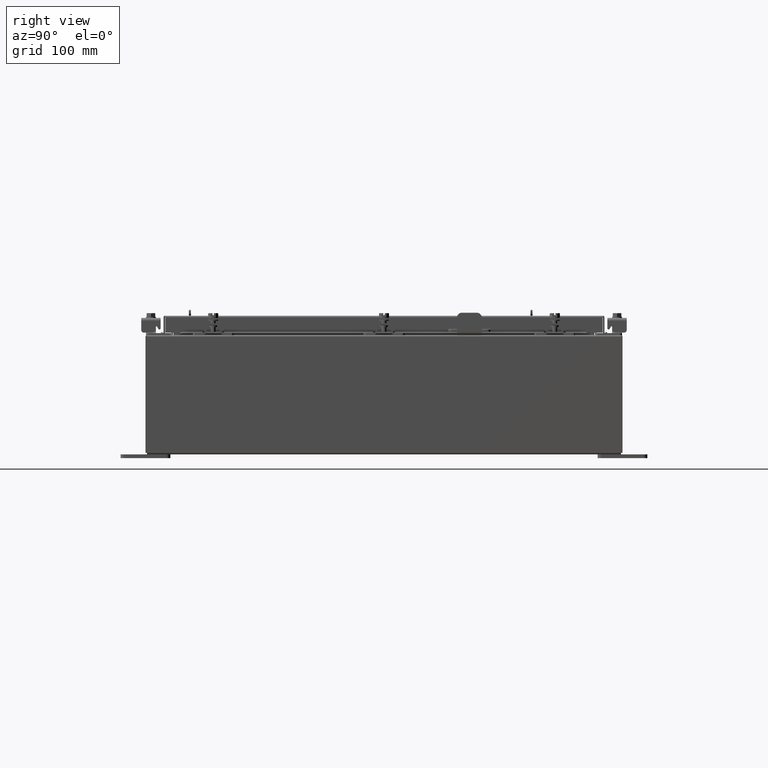
[diagram: clean part render]
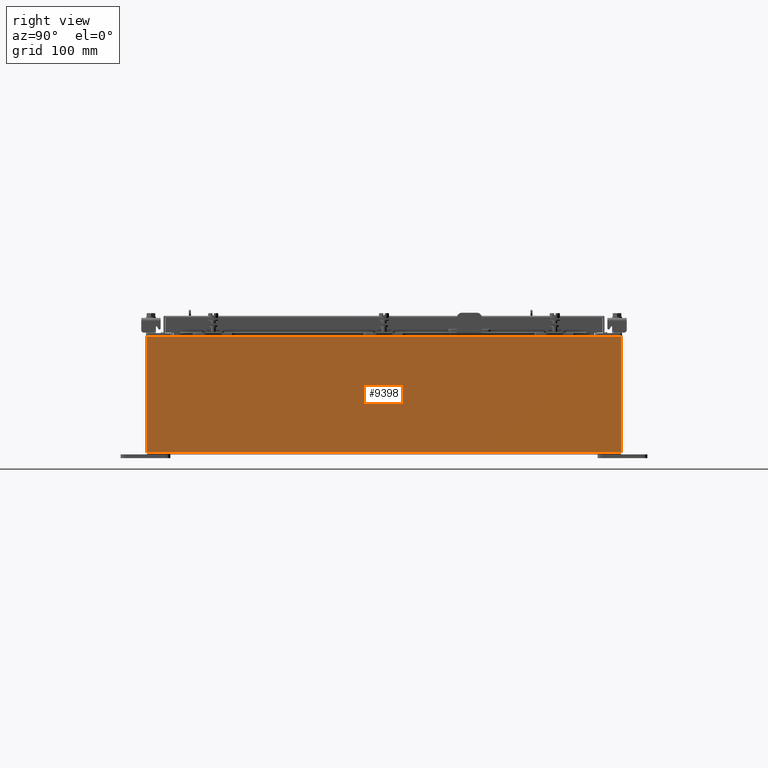
[diagram: same view with one face highlighted and labeled with its STEP entity id]
A machine part, right view. The second image highlights one B-rep face of the part: STEP entity #9398.
In plain terms, the highlighted planar face has unit normal (-1, 0, 0).
Its self-contained STEP definition (entity closure, byte-faithful):
#645 = VERTEX_POINT ( 'NONE', #7503 ) ;
#1080 = CARTESIAN_POINT ( 'NONE',  ( 11.99999999999999800, 11.92529999999999600, 0.01299999999999986400 ) ) ;
#1382 = ORIENTED_EDGE ( 'NONE', *, *, #15637, .T. ) ;
#1831 = VECTOR ( 'NONE', #1911, 39.37007874015748100 ) ;
#1911 = DIRECTION ( 'NONE',  ( -0.0000000000000000000, -1.000000000000000000, -0.0000000000000000000 ) ) ;
#2175 = CARTESIAN_POINT ( 'NONE',  ( 11.99999999999999800, -11.92530000000000400, -4.009536492811464200E-014 ) ) ;
#2377 = FACE_OUTER_BOUND ( 'NONE', #17457, .T. ) ;
#2378 = LINE ( 'NONE', #14114, #1831 ) ;
#3468 = VERTEX_POINT ( 'NONE', #8828 ) ;
#3616 = CARTESIAN_POINT ( 'NONE',  ( 11.99999999999999800, -11.92530000000000400, 0.01299999999999986400 ) ) ;
#4391 = EDGE_CURVE ( 'NONE', #12203, #13837, #14708, .T. ) ;
#6010 = VECTOR ( 'NONE', #14266, 39.37007874015748100 ) ;
#7503 = CARTESIAN_POINT ( 'NONE',  ( 12.00000000000001800, 11.92529999999999600, 5.837600000000001000 ) ) ;
#8828 = CARTESIAN_POINT ( 'NONE',  ( 12.00000000000001800, -11.92530000000000400, 5.837600000000001000 ) ) ;
#9198 = ORIENTED_EDGE ( 'NONE', *, *, #20733, .T. ) ;
#9398 = ADVANCED_FACE ( 'NONE', ( #2377 ), #18734, .F. ) ;
#10058 = DIRECTION ( 'NONE',  ( -1.000000000000000000, 0.0000000000000000000, 3.319545939341922000E-015 ) ) ;
#10060 = VECTOR ( 'NONE', #21081, 39.37007874015748100 ) ;
#12203 = VERTEX_POINT ( 'NONE', #1080 ) ;
#12498 = CARTESIAN_POINT ( 'NONE',  ( 11.99999999999999800, 11.92529999999999800, -4.009536492811464200E-014 ) ) ;
#13837 = VERTEX_POINT ( 'NONE', #15824 ) ;
#14114 = CARTESIAN_POINT ( 'NONE',  ( 12.00000000000001800, 11.92529999999999800, 5.837600000000001000 ) ) ;
#14266 = DIRECTION ( 'NONE',  ( 3.319545939341922800E-015, 0.0000000000000000000, 1.000000000000000000 ) ) ;
#14708 = LINE ( 'NONE', #3616, #10060 ) ;
#15637 = EDGE_CURVE ( 'NONE', #12203, #645, #19924, .T. ) ;
#15824 = CARTESIAN_POINT ( 'NONE',  ( 11.99999999999999800, -11.92530000000000400, 0.01299999999999985900 ) ) ;
#16365 = EDGE_CURVE ( 'NONE', #3468, #13837, #22349, .T. ) ;
#16996 = CARTESIAN_POINT ( 'NONE',  ( 11.99999999999999800, 0.0000000000000000000, -4.009536492811464200E-014 ) ) ;
#17457 = EDGE_LOOP ( 'NONE', ( #9198, #19578, #20688, #1382 ) ) ;
#17721 = VECTOR ( 'NONE', #17872, 39.37007874015748100 ) ;
#17742 = AXIS2_PLACEMENT_3D ( 'NONE', #16996, #10058, #22238 ) ;
#17872 = DIRECTION ( 'NONE',  ( -3.319545939341922800E-015, 0.0000000000000000000, -1.000000000000000000 ) ) ;
#18734 = PLANE ( 'NONE',  #17742 ) ;
#19578 = ORIENTED_EDGE ( 'NONE', *, *, #16365, .T. ) ;
#19924 = LINE ( 'NONE', #12498, #6010 ) ;
#20688 = ORIENTED_EDGE ( 'NONE', *, *, #4391, .F. ) ;
#20733 = EDGE_CURVE ( 'NONE', #645, #3468, #2378, .T. ) ;
#21081 = DIRECTION ( 'NONE',  ( -0.0000000000000000000, -1.000000000000000000, -0.0000000000000000000 ) ) ;
#22238 = DIRECTION ( 'NONE',  ( 3.319545939341922000E-015, 0.0000000000000000000, 1.000000000000000000 ) ) ;
#22349 = LINE ( 'NONE', #2175, #17721 ) ;